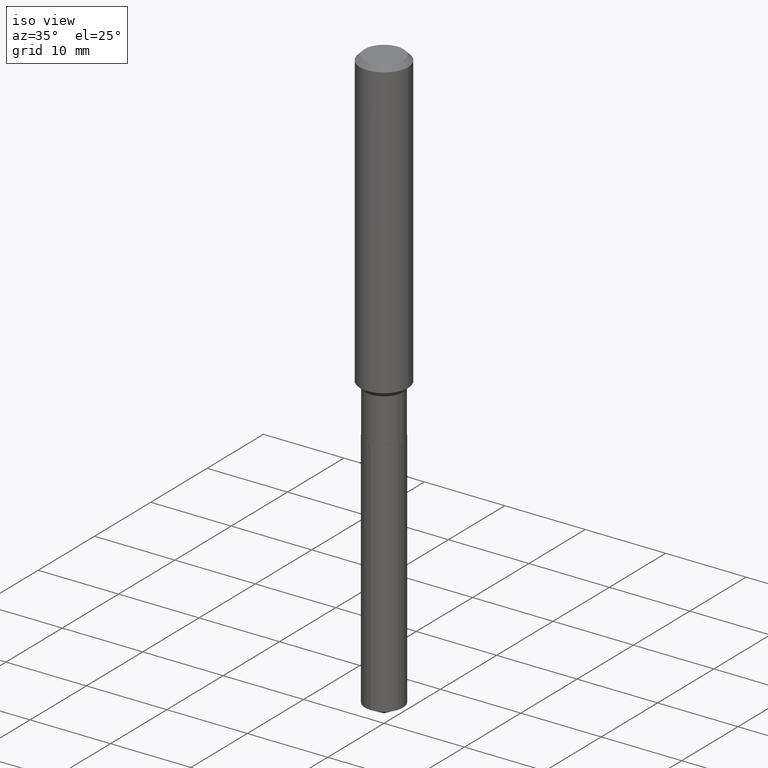
[diagram: clean part render]
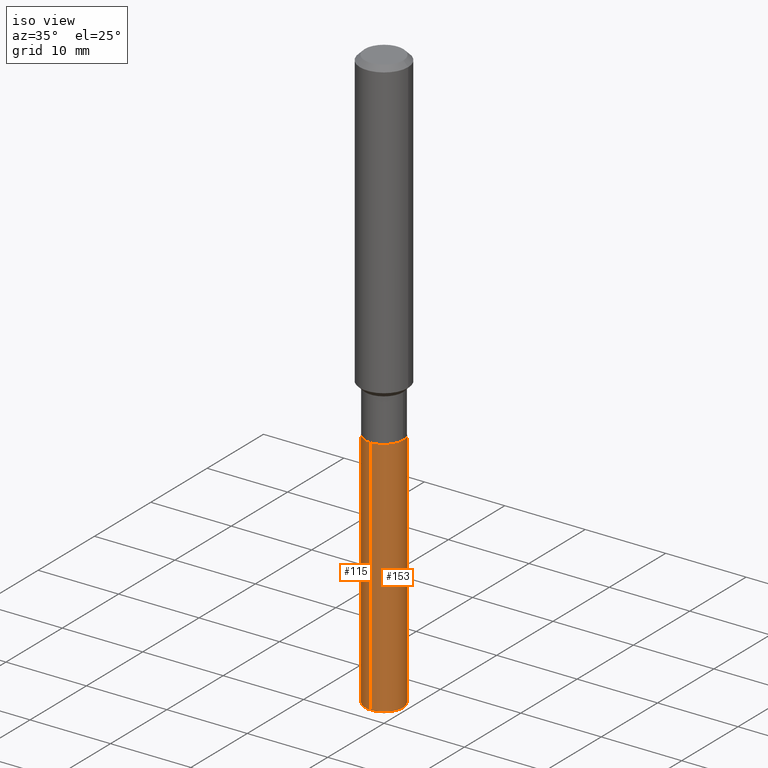
[diagram: same view with one multi-face feature highlighted, each face labeled with its STEP entity id]
A machine part, iso view. The highlighted faces form ONE feature: a constant-radius fillet chain: 2 tangent blend faces with common blend radius 2.3495 mm. The faces share edges in the B-rep.
Their STEP definitions:
[1] entity #153 (Cylinder):
#5 = CARTESIAN_POINT ( 'NONE',  ( 6.572520305781336848E-16, 0.09249999999999412859, -1.681100000000000483 ) ) ;
#13 = LINE ( 'NONE', #5, #462 ) ;
#31 = AXIS2_PLACEMENT_3D ( 'NONE', #243, #315, #359 ) ;
#51 = ORIENTED_EDGE ( 'NONE', *, *, #60, .F. ) ;
#54 = VECTOR ( 'NONE', #124, 39.37007874015748143 ) ;
#58 = FACE_OUTER_BOUND ( 'NONE', #480, .T. ) ;
#60 = EDGE_CURVE ( 'NONE', #366, #71, #162, .T. ) ;
#63 = DIRECTION ( 'NONE',  ( -6.982962677686265922E-15, -1.000000000000000000, 2.953349182339743999E-15 ) ) ;
#66 = EDGE_CURVE ( 'NONE', #486, #255, #13, .T. ) ;
#67 = CARTESIAN_POINT ( 'NONE',  ( 4.111077610077833736E-29, -5.869529278729212802E-15, -1.681100000000000261 ) ) ;
#71 = VERTEX_POINT ( 'NONE', #164 ) ;
#86 = DIRECTION ( 'NONE',  ( -2.445523626851900932E-29, 3.491402832528140421E-15, 1.000000000000000000 ) ) ;
#90 = DIRECTION ( 'NONE',  ( -2.445523626851900652E-29, 3.491402832528140815E-15, 1.000000000000000000 ) ) ;
#124 = DIRECTION ( 'NONE',  ( -2.445523626851900932E-29, 3.491402832528140421E-15, 1.000000000000000000 ) ) ;
#126 = CIRCLE ( 'NONE', #368, 0.09249999999999999889 ) ;
#132 = CARTESIAN_POINT ( 'NONE',  ( 6.572520305781627741E-16, 0.09249999999999412859, -1.681100000000000483 ) ) ;
#153 = ADVANCED_FACE ( 'NONE', ( #58 ), #430, .T. ) ;
#162 = LINE ( 'NONE', #201, #54 ) ;
#164 = CARTESIAN_POINT ( 'NONE',  ( -6.459240476859384725E-16, -0.09250000000000588307, -1.681100000000000039 ) ) ;
#201 = CARTESIAN_POINT ( 'NONE',  ( -6.459240476859384725E-16, -0.09250000000000588307, -1.681100000000000039 ) ) ;
#213 = CARTESIAN_POINT ( 'NONE',  ( 6.572520305781625768E-16, 0.09249999999998999300, -2.864216877571314157 ) ) ;
#243 = CARTESIAN_POINT ( 'NONE',  ( 7.004417887505728040E-29, -1.000026689629354577E-14, -2.864216877571313269 ) ) ;
#246 = CARTESIAN_POINT ( 'NONE',  ( -6.459240476859095804E-16, -0.09250000000001000477, -2.864216877571312825 ) ) ;
#251 = EDGE_CURVE ( 'NONE', #366, #486, #355, .T. ) ;
#255 = VERTEX_POINT ( 'NONE', #132 ) ;
#309 = ORIENTED_EDGE ( 'NONE', *, *, #66, .T. ) ;
#315 = DIRECTION ( 'NONE',  ( -2.445523626851900652E-29, 3.491402832528140815E-15, 1.000000000000000000 ) ) ;
#346 = ORIENTED_EDGE ( 'NONE', *, *, #450, .F. ) ;
#355 = CIRCLE ( 'NONE', #31, 0.09249999999999999889 ) ;
#359 = DIRECTION ( 'NONE',  ( -6.982962677686265922E-15, -1.000000000000000000, 5.906698364679487997E-15 ) ) ;
#365 = DIRECTION ( 'NONE',  ( -2.445523626851900652E-29, 3.491402832528140815E-15, 1.000000000000000000 ) ) ;
#366 = VERTEX_POINT ( 'NONE', #246 ) ;
#368 = AXIS2_PLACEMENT_3D ( 'NONE', #67, #365, #447 ) ;
#389 = AXIS2_PLACEMENT_3D ( 'NONE', #426, #90, #63 ) ;
#415 = ORIENTED_EDGE ( 'NONE', *, *, #251, .T. ) ;
#426 = CARTESIAN_POINT ( 'NONE',  ( 4.111077610077833736E-29, -5.869529278729212802E-15, -1.681100000000000261 ) ) ;
#430 = CYLINDRICAL_SURFACE ( 'NONE', #389, 0.09249999999999999889 ) ;
#447 = DIRECTION ( 'NONE',  ( -6.982962677686265922E-15, -1.000000000000000000, 2.953349182339743999E-15 ) ) ;
#450 = EDGE_CURVE ( 'NONE', #71, #255, #126, .T. ) ;
#462 = VECTOR ( 'NONE', #86, 39.37007874015748143 ) ;
#480 = EDGE_LOOP ( 'NONE', ( #415, #309, #346, #51 ) ) ;
#486 = VERTEX_POINT ( 'NONE', #213 ) ;
[2] entity #115 (Cylinder):
#5 = CARTESIAN_POINT ( 'NONE',  ( 6.572520305781336848E-16, 0.09249999999999412859, -1.681100000000000483 ) ) ;
#13 = LINE ( 'NONE', #5, #462 ) ;
#29 = CARTESIAN_POINT ( 'NONE',  ( 4.111077610077833736E-29, -5.869529278729212802E-15, -1.681100000000000261 ) ) ;
#42 = ORIENTED_EDGE ( 'NONE', *, *, #60, .T. ) ;
#54 = VECTOR ( 'NONE', #124, 39.37007874015748143 ) ;
#60 = EDGE_CURVE ( 'NONE', #366, #71, #162, .T. ) ;
#66 = EDGE_CURVE ( 'NONE', #486, #255, #13, .T. ) ;
#71 = VERTEX_POINT ( 'NONE', #164 ) ;
#80 = EDGE_CURVE ( 'NONE', #255, #71, #275, .T. ) ;
#86 = DIRECTION ( 'NONE',  ( -2.445523626851900932E-29, 3.491402832528140421E-15, 1.000000000000000000 ) ) ;
#110 = ORIENTED_EDGE ( 'NONE', *, *, #80, .F. ) ;
#115 = ADVANCED_FACE ( 'NONE', ( #203 ), #210, .T. ) ;
#124 = DIRECTION ( 'NONE',  ( -2.445523626851900932E-29, 3.491402832528140421E-15, 1.000000000000000000 ) ) ;
#130 = DIRECTION ( 'NONE',  ( -2.445523626851900652E-29, 3.491402832528140815E-15, 1.000000000000000000 ) ) ;
#132 = CARTESIAN_POINT ( 'NONE',  ( 6.572520305781627741E-16, 0.09249999999999412859, -1.681100000000000483 ) ) ;
#151 = ORIENTED_EDGE ( 'NONE', *, *, #189, .T. ) ;
#155 = EDGE_LOOP ( 'NONE', ( #421, #151, #42, #110 ) ) ;
#162 = LINE ( 'NONE', #201, #54 ) ;
#164 = CARTESIAN_POINT ( 'NONE',  ( -6.459240476859384725E-16, -0.09250000000000588307, -1.681100000000000039 ) ) ;
#189 = EDGE_CURVE ( 'NONE', #486, #366, #417, .T. ) ;
#201 = CARTESIAN_POINT ( 'NONE',  ( -6.459240476859384725E-16, -0.09250000000000588307, -1.681100000000000039 ) ) ;
#203 = FACE_OUTER_BOUND ( 'NONE', #155, .T. ) ;
#210 = CYLINDRICAL_SURFACE ( 'NONE', #280, 0.09249999999999999889 ) ;
#213 = CARTESIAN_POINT ( 'NONE',  ( 6.572520305781625768E-16, 0.09249999999998999300, -2.864216877571314157 ) ) ;
#244 = AXIS2_PLACEMENT_3D ( 'NONE', #470, #354, #314 ) ;
#246 = CARTESIAN_POINT ( 'NONE',  ( -6.459240476859095804E-16, -0.09250000000001000477, -2.864216877571312825 ) ) ;
#255 = VERTEX_POINT ( 'NONE', #132 ) ;
#273 = DIRECTION ( 'NONE',  ( -6.982962677686265922E-15, -1.000000000000000000, 2.953349182339743999E-15 ) ) ;
#275 = CIRCLE ( 'NONE', #425, 0.09249999999999999889 ) ;
#280 = AXIS2_PLACEMENT_3D ( 'NONE', #29, #130, #429 ) ;
#311 = CARTESIAN_POINT ( 'NONE',  ( 4.111077610077833736E-29, -5.869529278729212802E-15, -1.681100000000000261 ) ) ;
#314 = DIRECTION ( 'NONE',  ( -6.982962677686265922E-15, -1.000000000000000000, 5.906698364679487997E-15 ) ) ;
#354 = DIRECTION ( 'NONE',  ( -2.445523626851900652E-29, 3.491402832528140815E-15, 1.000000000000000000 ) ) ;
#366 = VERTEX_POINT ( 'NONE', #246 ) ;
#417 = CIRCLE ( 'NONE', #244, 0.09249999999999999889 ) ;
#421 = ORIENTED_EDGE ( 'NONE', *, *, #66, .F. ) ;
#425 = AXIS2_PLACEMENT_3D ( 'NONE', #311, #464, #273 ) ;
#429 = DIRECTION ( 'NONE',  ( -6.982962677686265922E-15, -1.000000000000000000, 2.953349182339743999E-15 ) ) ;
#462 = VECTOR ( 'NONE', #86, 39.37007874015748143 ) ;
#464 = DIRECTION ( 'NONE',  ( -2.445523626851900652E-29, 3.491402832528140815E-15, 1.000000000000000000 ) ) ;
#470 = CARTESIAN_POINT ( 'NONE',  ( 7.004417887505728040E-29, -1.000026689629354577E-14, -2.864216877571313269 ) ) ;
#486 = VERTEX_POINT ( 'NONE', #213 ) ;